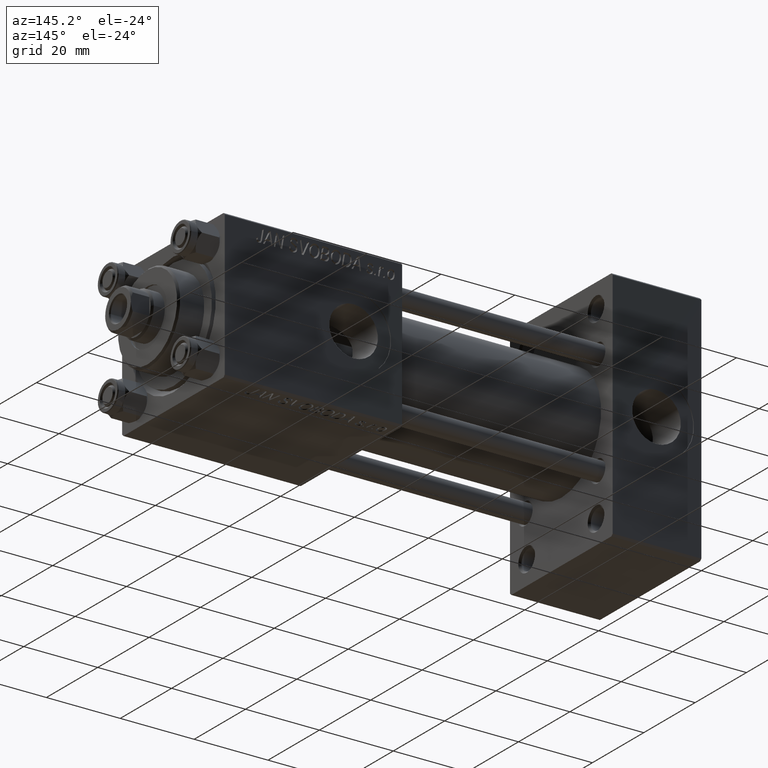
[diagram: clean part render]
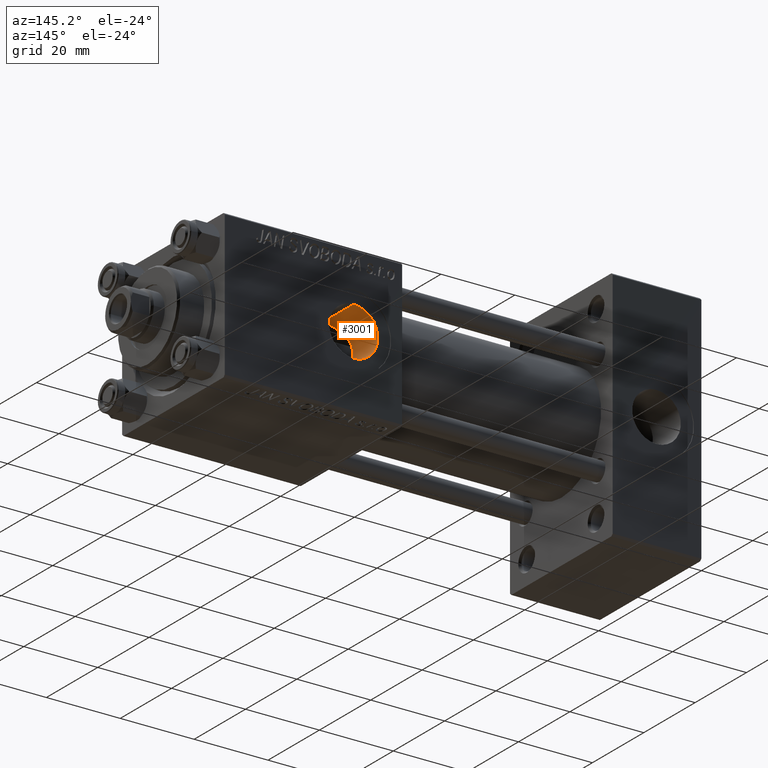
[diagram: same view with one face highlighted and labeled with its STEP entity id]
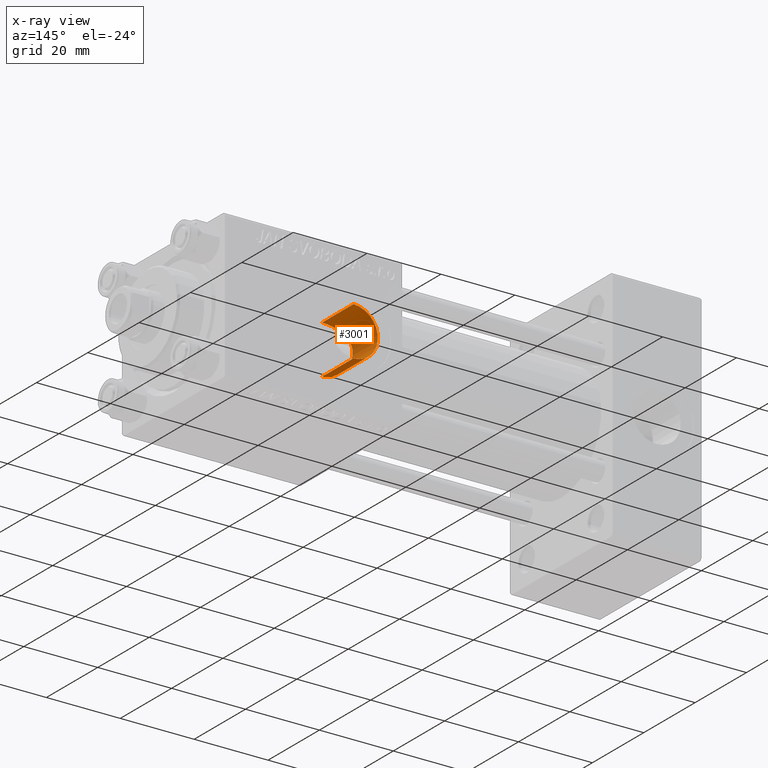
[diagram: x-ray of the same camera — body ghosted, the highlighted face saturated]
A machine part, auxiliary view. The second image highlights one B-rep face of the part: STEP entity #3001.
The next image is the same camera in x-ray: the body ghosted, the highlighted face saturated — about 0% of this face is hidden behind the body in this view.
In plain terms, the highlighted cylindrical surface (edge-blend (fillet) strip) has radius 6.58 mm, axis along (0, 1, 0).
Its self-contained STEP definition (entity closure, byte-faithful):
#225 = CARTESIAN_POINT ( 'NONE',  ( 89.97861002298178335, 8.531011078197984432, 5.224883813250303710 ) ) ;
#351 = EDGE_CURVE ( 'NONE', #24182, #24560, #5848, .T. ) ;
#958 = CARTESIAN_POINT ( 'NONE',  ( 89.65669753948743903, 8.689338620986713835, -4.960407246870169651 ) ) ;
#1508 = DIRECTION ( 'NONE',  ( 0.000000000000000000, 0.000000000000000000, 1.000000000000000000 ) ) ;
#3001 = ADVANCED_FACE ( 'NONE', ( #26699 ), #46877, .F. ) ;
#4229 = DIRECTION ( 'NONE',  ( 0.000000000000000000, 0.000000000000000000, 1.000000000000000000 ) ) ;
#4506 = CARTESIAN_POINT ( 'NONE',  ( 88.79331962357116481, 9.152894906955811649, 4.045847017191781525 ) ) ;
#5848 = CIRCLE ( 'NONE', #29181, 6.580000000000002736 ) ;
#6561 = DIRECTION ( 'NONE',  ( -0.000000000000000000, 1.000000000000000000, -0.000000000000000000 ) ) ;
#7771 = CARTESIAN_POINT ( 'NONE',  ( 94.00000000000000000, -18.61105048082993463, 0.000000000000000000 ) ) ;
#8043 = CARTESIAN_POINT ( 'NONE',  ( 87.77899784263266270, 9.766632874168745815, -2.186530610313685674 ) ) ;
#8254 = B_SPLINE_CURVE_WITH_KNOTS ( 'NONE', 3,
 ( #49957, #23672, #46903, #19390, #16108, #31500, #20131, #46170, #15617, #42124, #958, #11826, #45925, #31253, #34553, #8043, #12316, #27705, #43100, #22935, #15370, #19636, #23184, #8527, #26724, #34794, #23915, #4506, #35535, #15863, #225, #30998, #39323, #11336, #11581, #27465, #35044, #26969, #30753, #16350 ),
 .UNSPECIFIED., .F., .F.,
 ( 4, 2, 2, 2, 2, 2, 2, 2, 2, 2, 2, 2, 2, 2, 2, 2, 2, 2, 2, 4 ),
 ( 0.008701731815737195549, 0.01002764154747722881, 0.01069059641334724545, 0.01135355127921726034, 0.01267946101095733004, 0.01400537074269739973, 0.01533128047443746943, 0.01665719020617753565, 0.01798309993791760708, 0.01930900966965767851, 0.01997196453552771075, 0.02063491940139774300, 0.02196082913313780402, 0.02328673886487786157, 0.02461264859661792259, 0.02593855832835798014, 0.02726446806009803769, 0.02859037779183809524, 0.02925333265770813096, 0.02991628752357815973 ),
 .UNSPECIFIED. ) ;
#8423 = CARTESIAN_POINT ( 'NONE',  ( 94.00000000000000000, 19.79999999999999716, -6.580000000000002736 ) ) ;
#8527 = CARTESIAN_POINT ( 'NONE',  ( 87.63933714938147546, 9.856835002517316369, 1.741389802721241997 ) ) ;
#11336 = CARTESIAN_POINT ( 'NONE',  ( 91.82399083970061326, 7.829477968821658251, 6.224386180639470467 ) ) ;
#11581 = CARTESIAN_POINT ( 'NONE',  ( 92.24499048461181872, 7.720408724897654729, 6.356778800091487547 ) ) ;
#11826 = CARTESIAN_POINT ( 'NONE',  ( 89.06583207920478173, 8.999241216751643790, -4.373088525023450579 ) ) ;
#12181 = VECTOR ( 'NONE', #6561, 1000.000000000000000 ) ;
#12242 = DIRECTION ( 'NONE',  ( -0.000000000000000000, 1.000000000000000000, -0.000000000000000000 ) ) ;
#12316 = CARTESIAN_POINT ( 'NONE',  ( 87.64486949931878712, 9.853260265445776156, -1.760971689083144609 ) ) ;
#15370 = CARTESIAN_POINT ( 'NONE',  ( 87.43052818302869866, 9.993061695181122417, 0.4333401385722019938 ) ) ;
#15617 = CARTESIAN_POINT ( 'NONE',  ( 90.67561368687833578, 8.225369955964049851, -5.694022486111728121 ) ) ;
#15863 = CARTESIAN_POINT ( 'NONE',  ( 89.65199552752063994, 8.691690517589769627, 4.956328465760321045 ) ) ;
#16108 = CARTESIAN_POINT ( 'NONE',  ( 92.24985912774563701, 7.728280517147022799, -6.346698061136351043 ) ) ;
#16350 = CARTESIAN_POINT ( 'NONE',  ( 94.00000000000000000, 7.530179280734286884, 6.580000000000002736 ) ) ;
#16356 = EDGE_CURVE ( 'NONE', #37428, #45040, #8254, .T. ) ;
#16774 = LINE ( 'NONE', #31429, #45197 ) ;
#16889 = DIRECTION ( 'NONE',  ( 0.000000000000000000, 1.000000000000000000, 0.000000000000000000 ) ) ;
#17073 = ORIENTED_EDGE ( 'NONE', *, *, #351, .T. ) ;
#17325 = ORIENTED_EDGE ( 'NONE', *, *, #38177, .T. ) ;
#18422 = LINE ( 'NONE', #33826, #12181 ) ;
#19390 = CARTESIAN_POINT ( 'NONE',  ( 92.46400010845917450, 7.682314708625094468, -6.401981549516360559 ) ) ;
#19636 = CARTESIAN_POINT ( 'NONE',  ( 87.47471016135192201, 9.964071937118859523, 0.8754062778586855220 ) ) ;
#20131 = CARTESIAN_POINT ( 'NONE',  ( 91.63397822778084389, 7.890965100433708024, -6.143572682358476200 ) ) ;
#20204 = ORIENTED_EDGE ( 'NONE', *, *, #16356, .F. ) ;
#21078 = EDGE_LOOP ( 'NONE', ( #20204, #17325, #17073, #46889 ) ) ;
#22935 = CARTESIAN_POINT ( 'NONE',  ( 87.41947924441375051, 10.00034265660074695, 0.2080752460831425954 ) ) ;
#23184 = CARTESIAN_POINT ( 'NONE',  ( 87.50781260172500708, 9.942383431864973531, 1.093810025436276590 ) ) ;
#23672 = CARTESIAN_POINT ( 'NONE',  ( 93.54968518773713981, 7.530179280734285996, -6.580000000000005400 ) ) ;
#23915 = CARTESIAN_POINT ( 'NONE',  ( 88.31448218403936323, 9.433508227117542333, 3.339653543887883824 ) ) ;
#24182 = VERTEX_POINT ( 'NONE', #8423 ) ;
#24560 = VERTEX_POINT ( 'NONE', #30536 ) ;
#26699 = FACE_OUTER_BOUND ( 'NONE', #21078, .T. ) ;
#26724 = CARTESIAN_POINT ( 'NONE',  ( 87.77198206539004843, 9.771107044109506035, 2.166893426414470802 ) ) ;
#26969 = CARTESIAN_POINT ( 'NONE',  ( 93.55021314680965361, 7.540374272970529645, 6.568383239022532294 ) ) ;
#27465 = CARTESIAN_POINT ( 'NONE',  ( 92.88927853673739321, 7.608716402195930151, 6.489281286024417561 ) ) ;
#27680 = DIRECTION ( 'NONE',  ( -0.000000000000000000, 1.000000000000000000, -0.000000000000000000 ) ) ;
#27705 = CARTESIAN_POINT ( 'NONE',  ( 87.46739070597273269, 9.968652785925248949, -0.9020647327269544213 ) ) ;
#29181 = AXIS2_PLACEMENT_3D ( 'NONE', #47440, #16889, #1508 ) ;
#30536 = CARTESIAN_POINT ( 'NONE',  ( 94.00000000000000000, 19.79999999999999716, 6.580000000000002736 ) ) ;
#30753 = CARTESIAN_POINT ( 'NONE',  ( 93.77658445718570590, 7.530179280734285996, 6.580000000000002736 ) ) ;
#30998 = CARTESIAN_POINT ( 'NONE',  ( 90.67181861905734763, 8.226989970428277843, 5.691590015520642254 ) ) ;
#31253 = CARTESIAN_POINT ( 'NONE',  ( 88.32060445677777238, 9.429864945222146133, -3.349355904675323625 ) ) ;
#31429 = CARTESIAN_POINT ( 'NONE',  ( 94.00000000000000000, -18.61105048082993463, -6.580000000000002736 ) ) ;
#31500 = CARTESIAN_POINT ( 'NONE',  ( 91.83515531262848697, 7.832616369988991245, -6.217476725451134278 ) ) ;
#31629 = CARTESIAN_POINT ( 'NONE',  ( 94.00000000000000000, 7.530179280734871305, -6.580000000000002736 ) ) ;
#33826 = CARTESIAN_POINT ( 'NONE',  ( 94.00000000000000000, -18.61105048082993463, 6.580000000000002736 ) ) ;
#34277 = CARTESIAN_POINT ( 'NONE',  ( 94.00000000000000000, 7.530179280734286884, 6.580000000000002736 ) ) ;
#34553 = CARTESIAN_POINT ( 'NONE',  ( 88.11697545012229682, 9.554905949892342321, -2.978557721002617065 ) ) ;
#34794 = CARTESIAN_POINT ( 'NONE',  ( 88.10938216452537119, 9.559587018131841418, 2.963824561550466363 ) ) ;
#35044 = CARTESIAN_POINT ( 'NONE',  ( 93.10726510395802791, 7.579703922831290797, 6.522958760667121325 ) ) ;
#35535 = CARTESIAN_POINT ( 'NONE',  ( 89.06101818986525132, 9.001882163286794025, 4.367698871530063087 ) ) ;
#37428 = VERTEX_POINT ( 'NONE', #31629 ) ;
#38177 = EDGE_CURVE ( 'NONE', #37428, #24182, #16774, .T. ) ;
#39323 = CARTESIAN_POINT ( 'NONE',  ( 91.03930837247204977, 8.082784440517430724, 5.891714884320911949 ) ) ;
#39828 = EDGE_CURVE ( 'NONE', #45040, #24560, #18422, .T. ) ;
#42124 = CARTESIAN_POINT ( 'NONE',  ( 89.97744829692207702, 8.531476352750461345, -5.224223791845225229 ) ) ;
#43100 = CARTESIAN_POINT ( 'NONE',  ( 87.42109887631011134, 9.999276940569059136, -0.4637401164956160282 ) ) ;
#43786 = AXIS2_PLACEMENT_3D ( 'NONE', #7771, #27680, #4229 ) ;
#45040 = VERTEX_POINT ( 'NONE', #34277 ) ;
#45197 = VECTOR ( 'NONE', #12242, 1000.000000000000000 ) ;
#45925 = CARTESIAN_POINT ( 'NONE',  ( 88.79387502112993502, 9.152625658485755267, -4.045983368347076059 ) ) ;
#46170 = CARTESIAN_POINT ( 'NONE',  ( 91.04685303640259519, 8.080059513839973562, -5.895413499623305853 ) ) ;
#46877 = CYLINDRICAL_SURFACE ( 'NONE', #43786, 6.580000000000002736 ) ;
#46889 = ORIENTED_EDGE ( 'NONE', *, *, #39828, .F. ) ;
#46903 = CARTESIAN_POINT ( 'NONE',  ( 93.10965444000947855, 7.570770745331773632, -6.534274136616107675 ) ) ;
#47440 = CARTESIAN_POINT ( 'NONE',  ( 94.00000000000000000, 19.79999999999999716, 0.000000000000000000 ) ) ;
#49957 = CARTESIAN_POINT ( 'NONE',  ( 94.00000000000000000, 7.530179280734871305, -6.580000000000002736 ) ) ;